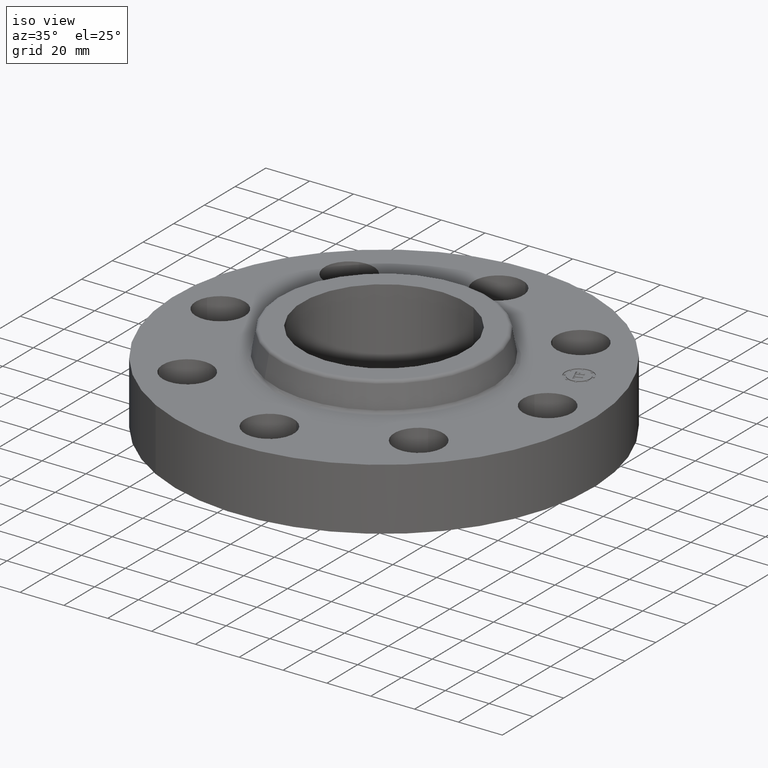
[diagram: clean part render]
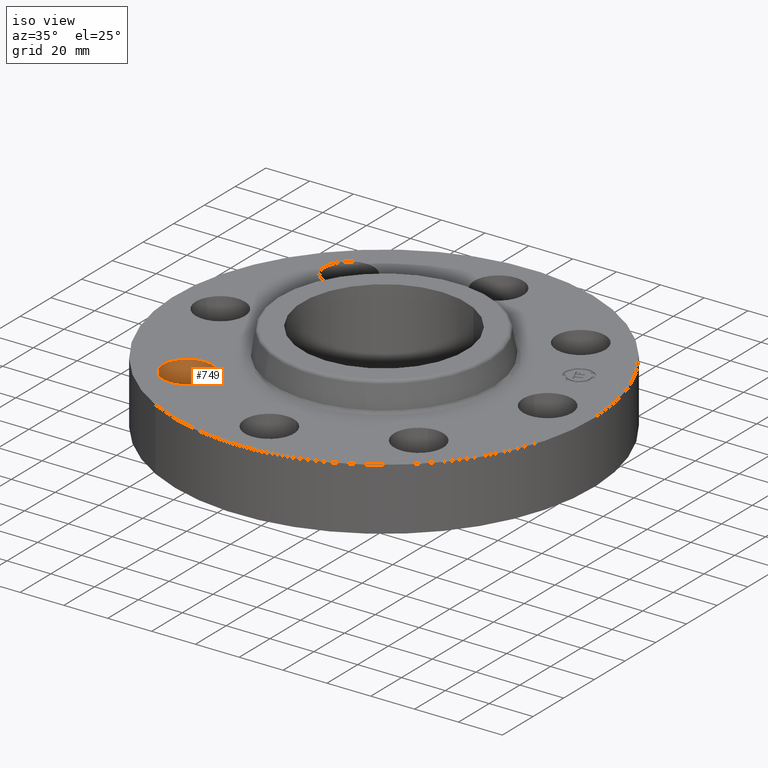
[diagram: same view with one face highlighted and labeled with its STEP entity id]
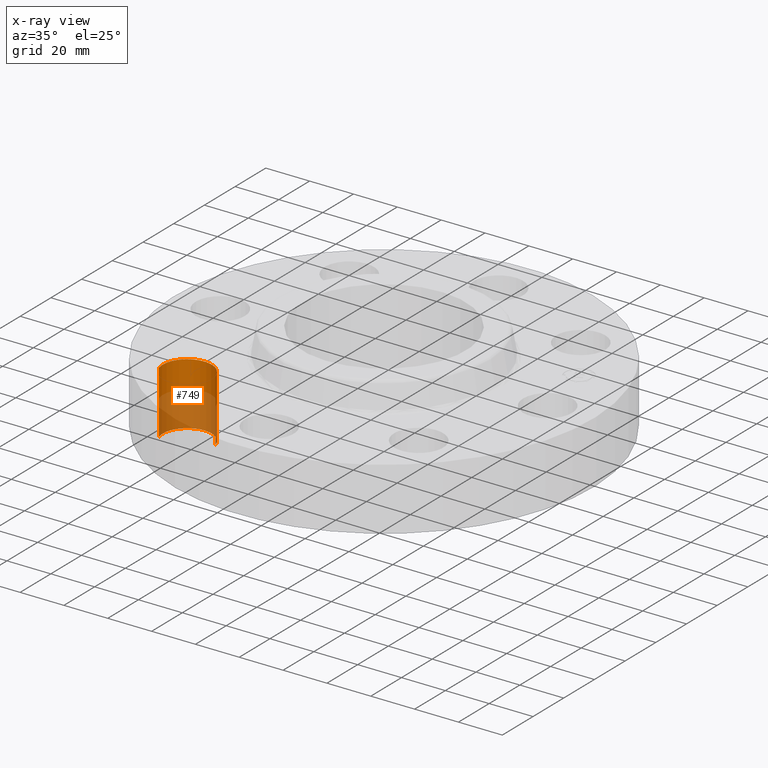
[diagram: x-ray of the same camera — body ghosted, the highlighted face saturated]
A machine part, iso view. The second image highlights one B-rep face of the part: STEP entity #749.
The next image is the same camera in x-ray: the body ghosted, the highlighted face saturated — about 56% of this face is hidden behind the body in this view.
In plain terms, the highlighted cylindrical surface (edge-blend (fillet) strip) has radius 11.176 mm, axis along (-0, 0, -1).
Its self-contained STEP definition (entity closure, byte-faithful):
#498=AXIS2_PLACEMENT_3D('Circle Axis2P3D',#496,#497,$) ;
#710=AXIS2_PLACEMENT_3D('Cylinder Axis2P3D',#707,#708,#709) ;
#740=AXIS2_PLACEMENT_3D('Circle Axis2P3D',#738,#739,$) ;
#491=CARTESIAN_POINT('Vertex',(-1.6566920995,-1.95501654299,0.)) ;
#493=CARTESIAN_POINT('Vertex',(-2.50109577389,-2.2027713304,0.)) ;
#496=CARTESIAN_POINT('Axis2P3D Location',(-2.0788939367,-2.0788939367,0.)) ;
#707=CARTESIAN_POINT('Axis2P3D Location',(-2.0788939367,-2.0788939367,1.11606299213)) ;
#712=CARTESIAN_POINT('Line Origine',(-1.6566920995,-1.95501654299,0.560000000002)) ;
#716=CARTESIAN_POINT('Vertex',(-1.6566920995,-1.95501654299,1.12)) ;
#719=CARTESIAN_POINT('Line Origine',(-2.50109577389,-2.2027713304,0.560000000002)) ;
#723=CARTESIAN_POINT('Vertex',(-2.50109577389,-2.2027713304,1.12)) ;
#738=CARTESIAN_POINT('Axis2P3D Location',(-2.0788939367,-2.0788939367,1.12)) ;
#497=DIRECTION('Axis2P3D Direction',(0.,0.,-0.0393700787402)) ;
#708=DIRECTION('Axis2P3D Direction',(-0.,0.,-0.0393700787402)) ;
#709=DIRECTION('Axis2P3D XDirection',(-0.0377775444876,-0.0110842335096,0.)) ;
#713=DIRECTION('Vector Direction',(0.,0.,-0.0393700787402)) ;
#720=DIRECTION('Vector Direction',(0.,0.,-0.0393700787402)) ;
#739=DIRECTION('Axis2P3D Direction',(-0.,0.,-0.0393700787402)) ;
#714=VECTOR('Line Direction',#713,0.0393700787402) ;
#721=VECTOR('Line Direction',#720,0.0393700787402) ;
#744=ORIENTED_EDGE('',*,*,#725,.F.) ;
#745=ORIENTED_EDGE('',*,*,#500,.T.) ;
#746=ORIENTED_EDGE('',*,*,#718,.T.) ;
#747=ORIENTED_EDGE('',*,*,#742,.F.) ;
#749=ADVANCED_FACE('PartBody',(#748),#711,.F.) ;
#499=CIRCLE('generated circle',#498,0.440000000002) ;
#741=CIRCLE('generated circle',#740,0.440000000002) ;
#711=CYLINDRICAL_SURFACE('generated cylinder',#710,0.440000000002) ;
#500=EDGE_CURVE('',#494,#492,#499,.T.) ;
#718=EDGE_CURVE('',#492,#717,#715,.F.) ;
#725=EDGE_CURVE('',#494,#724,#722,.F.) ;
#742=EDGE_CURVE('',#724,#717,#741,.T.) ;
#743=EDGE_LOOP('',(#744,#745,#746,#747)) ;
#748=FACE_OUTER_BOUND('',#743,.T.) ;
#715=LINE('Line',#712,#714) ;
#722=LINE('Line',#719,#721) ;
#492=VERTEX_POINT('',#491) ;
#494=VERTEX_POINT('',#493) ;
#717=VERTEX_POINT('',#716) ;
#724=VERTEX_POINT('',#723) ;